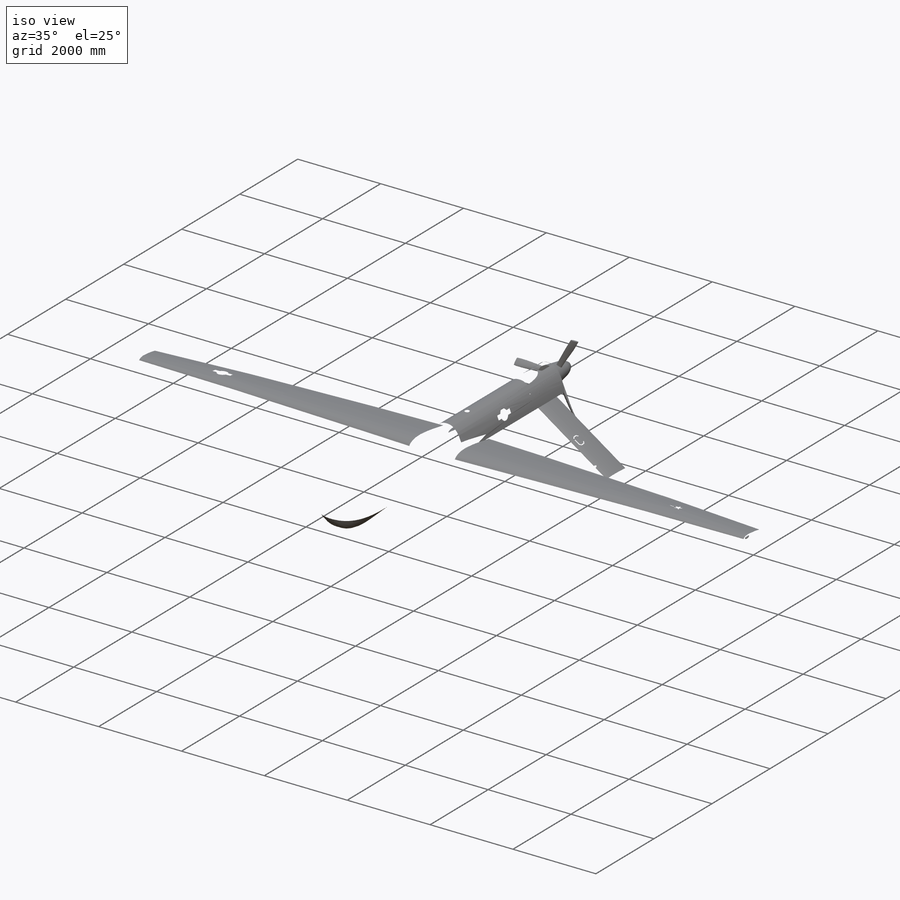
[diagram: iso view]
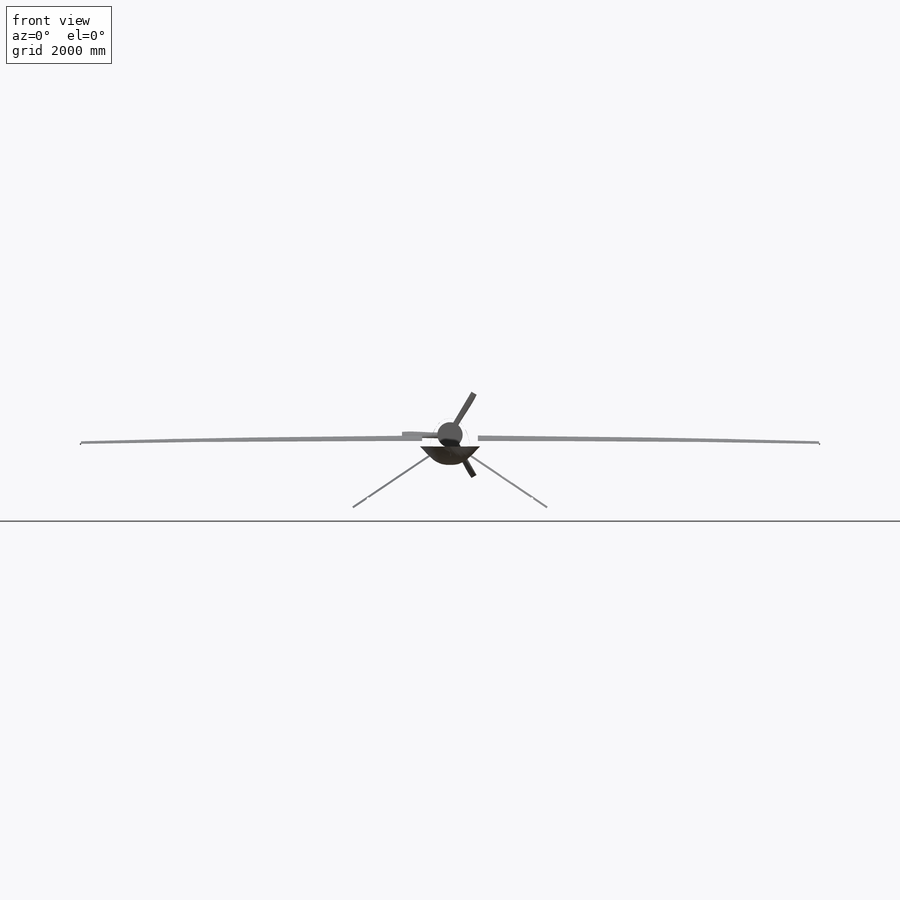
[diagram: front view]
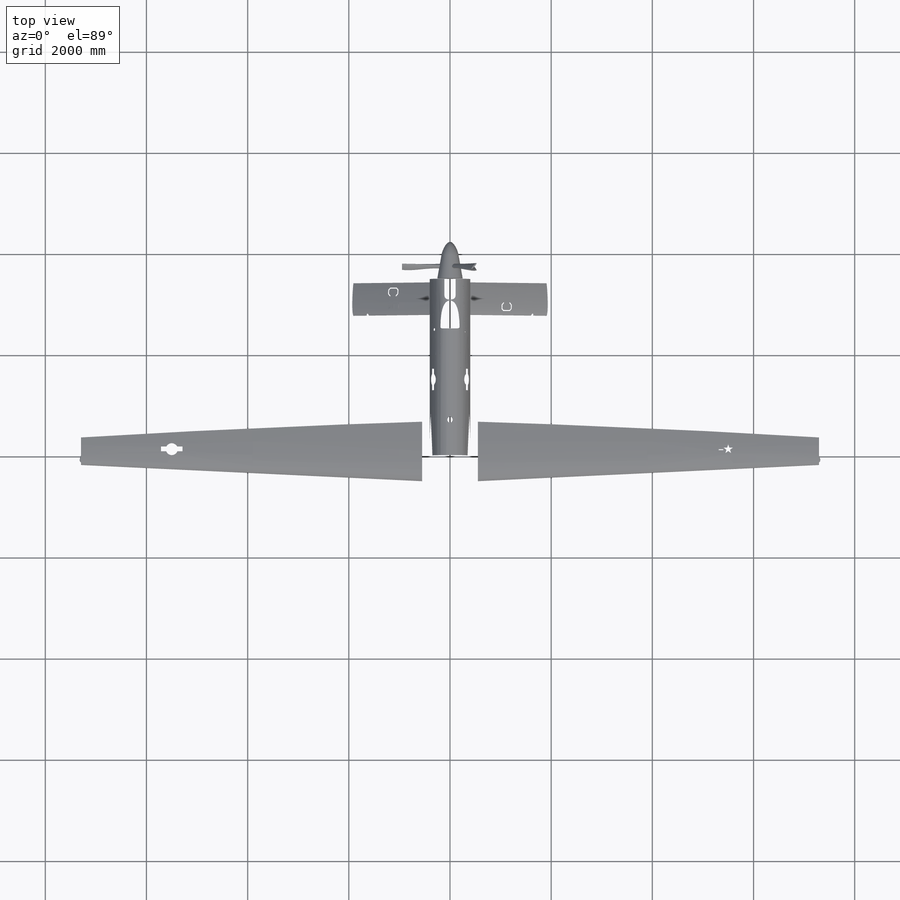
[diagram: top view]
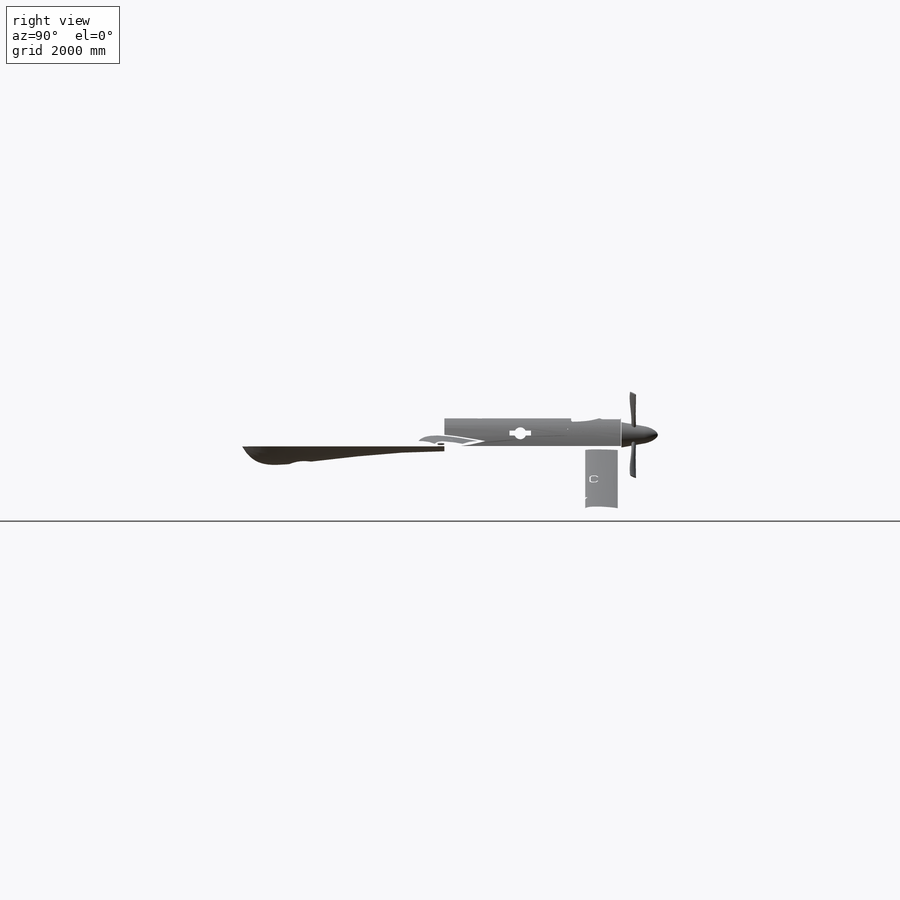
[diagram: right view]
SOLIDWORKS PART (.sldprt)
format: sldprt  version: not decoded by parser v0  size: 6,376,960 bytes
history: native  units: mm
features: sketch x83, plane x21, surface_op x13, fillet x11, extrude x10, mirror x4, revolve x3, cut_extrude x2, material x1, delete_body x1, pattern_circular x1, dome x1 (+16 scaffold rows collapsed)
feature tree (167):
  scaffold x16  (default folders/planes/origin — collapsed)
  material  "Material <not specified>"
  sketch  "PDTop"  dims[D1=8220.0mm D2=400.0mm]
  sketch  "PDFront"
  sketch  "Sketch Picture2"  dims[D1=2100.0mm D2=14800.0mm]
  sketch  "PDSide"
  sketch  "Sketch Picture3"  dims[D1=1300.0mm D2=1150.0mm D3=3000.0mm D4=7500.0mm]
  plane  "Tail Plane"
  plane  "Mid Plane"
  plane  "Mid Front Plane"
  plane  "top mid plane"
  sketch  "Sketch1"  dims[D1=1850.0mm]
  sketch  "Sketch2"  dims[D1=400.0mm]
  sketch  "Sketch3"  dims[c1.D1=~567.149254mm c1.D2=1000.0mm c2.D1=8.0deg c2.D3=500.0mm]
  sketch  "helper line"
  sketch  "Sketch6"
  surface_op  "Surface-Extrude1"
  sketch  "Sketch7"  dims[D1=1900.0mm D2=1900.0mm]
  sketch  "Sketch8"  dims[c1.D1=521.0707mm c2.D1=1600.0mm c2.D2=2000.0mm c2.D3=600.0mm]
  sketch  "Sketch9"  dims[c1.D2=750.0mm c1.D3=1300.0mm c1.D1=~345.406172mm c2.D1=12.0deg c3.D1=500.0mm]
  sketch  "Sketch10"
  sketch  "Sketch12"
  sketch  "Sketch15"  dims[c1.D1=~1035.547305mm c1.D2=1600.0mm c2.D1=30.0deg]
  sketch  "Sketch16"  dims[D1=1800.0mm]
  sketch  "Sketch18"  dims[D1=500.0mm]
  sketch  "Sketch12<4>"
  sketch  "Sketch19"  dims[D1=3500.0mm D2=1200.0mm]
  sketch  "Sketch20"  dims[c1.D1=350.0mm c1.D2=301.896mm c1.D3=250.0mm c2.D2=48.0deg]
  plane  "body split plane"
  sketch  "Sketch21"  dims[c1.D1=~1779.962979mm c1.D2=2700.0mm c1.D3=3000.0mm c2.D1=6.6deg c2.D4=330.0mm]
  sketch  "Sketch22"  dims[c1.D1=1000.0mm c1.D2=850.0mm c1.D3=~127.720535mm c2.D3=37.5deg c2.D1=500.0mm]
  sketch  "Sketch23"  dims[c1.D1=~1838.607181mm c1.D2=1450.0mm c2.D1=30.0deg c3.D1=500.0mm]
  sketch  "Sketch24"  dims[D1=500.0mm]
  sketch  "Sketch25"  dims[D1=500.0mm]
  delete_body  "Body-Delete1"
  sketch  "Sketch27"
  sketch  "Sketch28"
  sketch  "Sketch31"
  sketch  "Sketch27<9>"
  plane  "Wing plane"
  sketch  "Sketch32"  dims[c1.D1=~244.990638mm c1.D2=480.0mm c1.D4=360.0mm c2.D1=35.0deg c2.D3=80.0deg]
  sketch  "Sketch33"  dims[c1.D2=~1311.042357mm c2.D2=~1311.042357mm c2.D3=1500.0mm c2.D4=750.0mm c2.D1=~409.281559mm c3.D1=35.0deg c3.D2=80.0deg]
  sketch  "Sketch34"  dims[c1.D2=500.0mm c1.D3=~1703.754374mm c1.D4=1500.0mm c1.D1=~556.133428mm c2.D2=500.0mm c2.D3=~1685.482875mm c2.D4=1500.0mm c2.D1=~249.194301mm c3.D1=50.0deg c3.D3=75.0deg c4.D1=50.0deg c4.D3=75.0deg]
  sketch  "Sketch35"  dims[c1.D1=~156.714555mm c1.D2=350.0mm c1.D3=~874.612035mm c1.D4=480.0mm c2.D1=~162.119559mm c2.D2=360.0mm c2.D3=~944.978785mm c2.D4=480.0mm c3.D1=35.0deg c3.D3=80.0deg c4.D1=35.0deg c4.D3=80.0deg]
  sketch  "Sketch40"  dims[c1.D1=2100.0mm c2.D1=56.0deg]
  sketch  "Sketch41"
  plane  "Side tail plane 1"
  plane  "Side tail plane 2"
  sketch  "Sketch42"  dims[c1.D1=~329.164689mm c1.D2=300.0mm c1.D3=~780.336196mm c1.D4=300.0mm c2.D1=40.0deg c2.D3=75.0deg]
  sketch  "Sketch44"  dims[c1.D1=~692.900855mm c1.D2=220.0mm c1.D3=~720.964865mm c1.D4=800.0mm c2.D1=40.0deg c2.D3=80.0deg c3.D1=950.0mm]
  sketch  "Sketch49"
  sketch  "Sketch50"  dims[D1=100.0mm]
  surface_op  "Surface-Trim4"
  surface_op  "Surface-Trim8"
  sketch  "3DSketch2"
  plane  "Antenna Plane1"  Offset=1800mm
  plane  "Antenna Plane2"  Offset=600mm
  sketch  "Sketch51"
  sketch  "Sketch52"
  sketch  "3DSketch6"
  sketch  "Sketch53"
  sketch  "Sketch54"  dims[D1=80.0mm]
  sketch  "3DSketch11"  dims[D1=50.0mm]
  surface_op  "Surface-Trim9"
  surface_op  "Surface-Trim10"
  surface_op  "Surface-Trim11"
  surface_op  "Surface-Trim12"
  sketch  "Sketch55"  dims[D1=2300.0mm D2=830.0mm D3=~129.123046mm]
  sketch  "Sketch56"
  plane  "Plane3"
  plane  "Plane4"  Offset=1000mm
  sketch  "Sketch58"  dims[D1=2300.0mm D2=1000.0mm]
  sketch  "3DSketch13"
  sketch  "3DSketch14"
  surface_op  "Surface-Knit8"
  surface_op  "Surface-Knit9"
  surface_op  "Surface-Knit10"
  mirror  "Mirror3"
  surface_op  "Surface-Knit11"
  sketch  "Sketch60"  dims[D1=500.0mm]
  extrude  "Boss-Extrude1"  Depth=458mm
  sketch  "Sketch61"
  revolve  "Revolve1"  Angle=360deg
  plane  "propeller plane"  Offset=950mm
  sketch  "Sketch62"  dims[D1=106.52mm D2=144.97mm]
  sketch  "Sketch63"  dims[c1.D1=~419.242243mm c2.D1=45.0deg c2.D2=32.55mm c2.D3=162.64mm]
  sketch  "3DSketch15"
  surface_op  "Surface-Knit13"
  pattern_circular  "CirPattern1"  Count=3 Angle=120deg
  plane  "Plane6"  Offset=630mm
  sketch  "Sketch64"  dims[D1=45.0mm]
  extrude  "Boss-Extrude2"  Depth=220mm
  dome  "Dome1"
  mirror  "Mirror4"
  plane  "Plane7"  Offset=840mm
  sketch  "Sketch65"  dims[D1=45.0mm]
  extrude  "Boss-Extrude3"  Depth=500mm
  sketch  "Sketch67"  dims[D1=45.0mm]
  extrude  "Boss-Extrude4"  Depth=220mm
  sketch  "Sketch68"
  revolve  "Revolve2"  Angle=360deg
  plane  "Plane8"  Offset=1870mm
  sketch  "Sketch69"  dims[D4=30.0mm D1=80.0mm D2=40.0mm D3=160.0mm]
  extrude  "Boss-Extrude6"  Depth=71mm
  sketch  "Sketch70"
  extrude  "Boss-Extrude7"  Depth=100mm
  plane  "wing tips navigation light plane"  Offset=45mm
  sketch  "Sketch72"  dims[D1=80.0mm]
  extrude  "Boss-Extrude9"  Depth=190mm
  mirror  "Dome2"
  sketch  "Sketch73"  dims[D1=180.0mm]
  extrude  "Boss-Extrude10"  Depth=290mm
  plane  "Plane10"  Offset=180mm
  sketch  "Sketch75"
  revolve  "Revolve3"  Angle=360deg
  fillet  "Fillet5"  Radius=30mm
  fillet  "Fillet6"  Radius=10mm
  sketch  "Sketch81"
  extrude  "Boss-Extrude13"  Depth=40mm
  fillet  "Fillet7"  Radius=20mm
  sketch  "Sketch83"
  mirror  "Mirror6"
  sketch  "Sketch84"  dims[D1=550.0mm D2=550.0mm]
  fillet  "Fillet8"  Radius=15mm
  fillet  "Fillet9"  Radius=35mm
  fillet  "Fillet10"  Radius=15mm
  fillet  "Fillet11"  Radius=10mm
  fillet  "Fillet12"  Radius=5mm
  fillet  "Fillet13"  Radius=5mm
  fillet  "Fillet14"  Radius=30mm
  sketch  "Sketch88"
  sketch  "Sketch Picture11"  dims[c1.D1=215.0mm c1.D2=~64.856294mm c2.D2=~110.867016deg c2.D3=~64.856294mm c3.D2=~254.732243mm c4.D2=72.0deg c4.D3=~125.392928mm c5.D3=72.0deg c5.D4=~118.815791mm c6.D4=72.0deg c6.D5=~131.28005mm c7.D5=72.0deg c7.D6=~138.704094mm c8.D6=72.0deg c9.D6=~47.175646mm c9.D2=76.0mm c9.D3=~13.809641mm c9.D4=~13.809641mm c10.D6=~13.809641mm c10.D7=~48.380718mm c10.D8=~118.720804mm c11.D7=~16.126906mm c11.D8=~16.126906mm c11.D9=~16.126906mm c11.D1=10.0mm]
  sketch  "Sketch88<2>"
  sketch  "Sketch89"  dims[D1=76.0mm D2=~13.809641mm D3=~13.809641mm D4=~13.809641mm D5=~16.126906mm D6=~16.126906mm D7=5500.0mm D8=5500.0mm D9=76.0mm D10=~13.809641mm D11=~13.809641mm D12=~13.809641mm D13=~16.126906mm D14=~16.126906mm D15=10.0mm D16=10.0mm]
  sketch  "Sketch93"
  plane  "Plane13"
  sketch  "Sketch94"  dims[c1.D1=95.0mm c1.D2=95.0mm c1.D3=~643.560712mm c1.D4=~56.750267mm c1.D5=~56.750267mm c2.D1=95.0mm c2.D2=95.0mm c2.D3=~71.506746mm c2.D4=~71.506746mm c2.D5=~71.506746mm c2.D6=~71.506746mm c2.D7=~71.506746mm c2.D8=~71.506746mm c2.D9=~71.506746mm c2.D10=~71.506746mm c2.D11=10.0mm]
  sketch  "Sketch95"
  plane  "Plane14"
  sketch  "Sketch96"  dims[D1=95.0mm D2=~71.506746mm D3=~71.506746mm D4=~71.506746mm D5=~71.506746mm D6=~71.506746mm D7=~71.506746mm D8=~71.506746mm]
  surface_op  "Surface-Knit14"
  sketch  "Sketch98"
  sketch  "Sketch Picture15"  dims[c1.D1=~70.342328mm c2.D1=45.0deg c2.D2=6.0mm c2.D3=7.0mm c2.D4=28.0mm c2.D5=7.0mm c3.D3=7.0mm c3.D5=7.0mm c3.D6=7.0mm c3.D7=14.0mm c3.D8=2.6mm c3.D9=5.0mm c3.D10=2.6mm c3.D11=5.0mm]
  sketch  "Sketch99"  dims[D1=45.0deg]
  plane  "Plane15"  Offset=400mm
  sketch  "Sketch102"  dims[D1=420.0mm D2=15.0mm]
  extrude  "Boss-Extrude14"  [1 undecoded]
  sketch  "Sketch103"  dims[D1=405.0mm]
  cut_extrude  "Cut-Extrude1"  Depth=210mm
  fillet  "Fillet15"  Radius=10mm
  sketch  "Sketch104"  dims[c1.D1=70.0mm c1.D2=70.0mm c2.D1=70.0mm c2.D2=70.0mm c2.D3=300.0mm]
  cut_extrude  "Cut-Extrude2"  Depth=50mm
decode coverage: 76 of 129 modeling features carry decoded parameters
note: ~ marks probable driven/reference dimensions
note: 1 parameter value undecoded
note: suppression state not decoded; provenance and decode notes live in map.json
